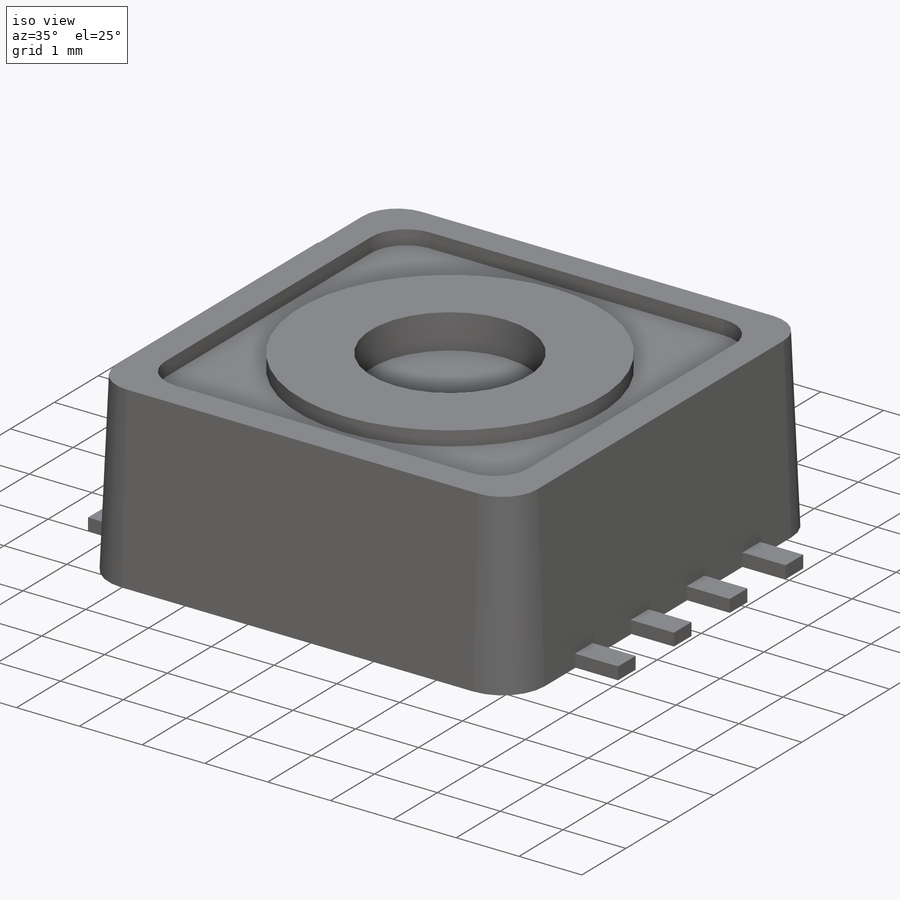
[diagram: iso view]
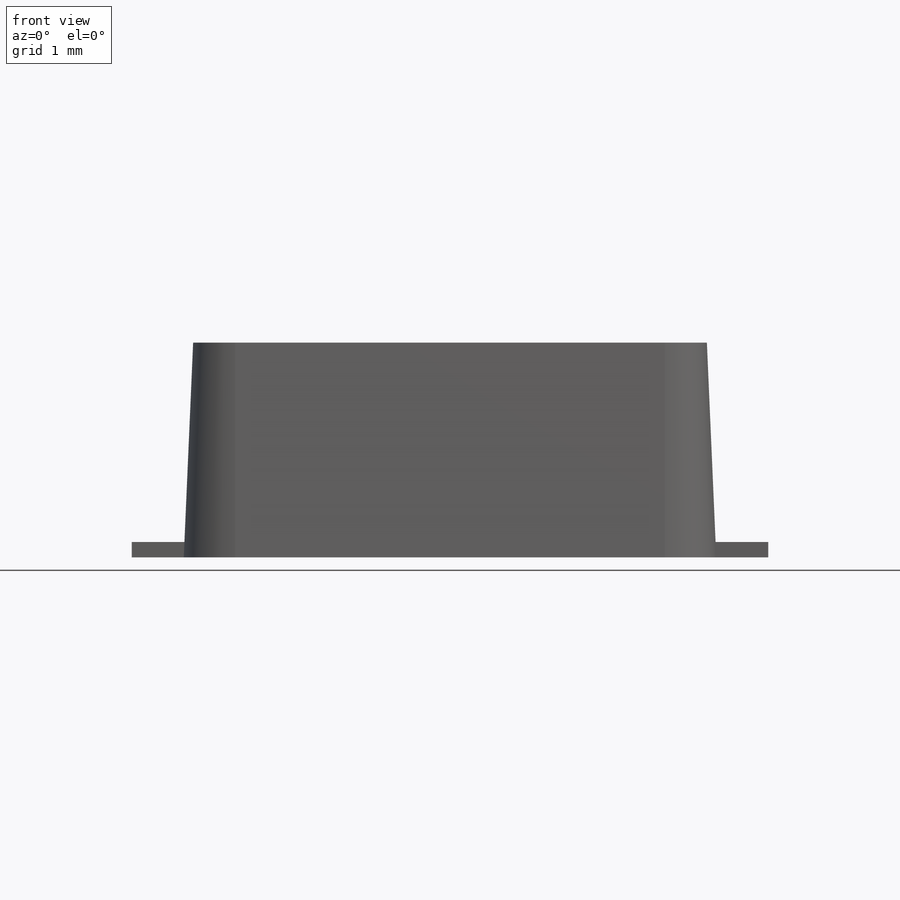
[diagram: front view]
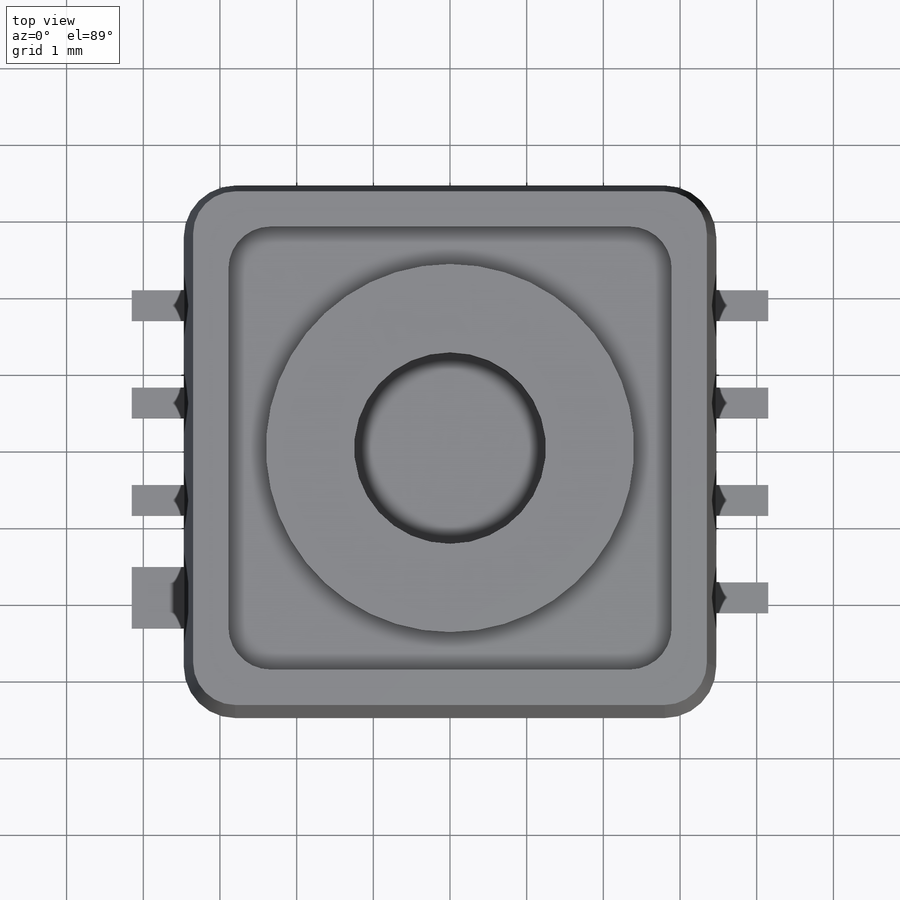
[diagram: top view]
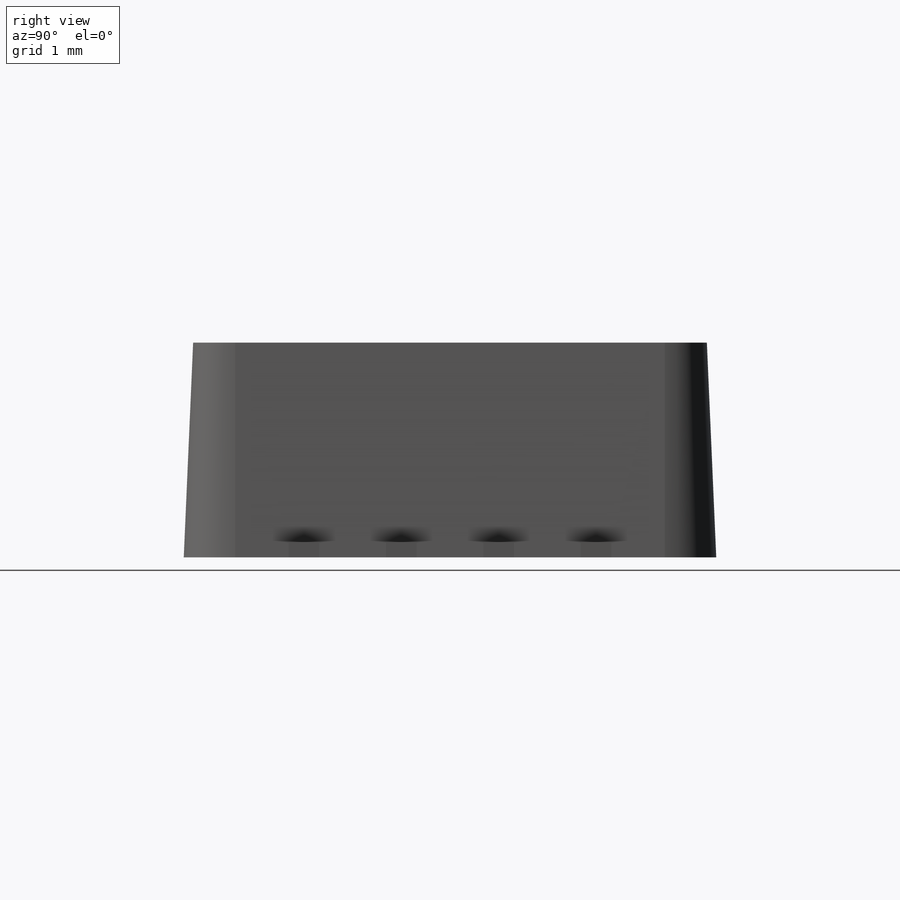
[diagram: right view]
SOLIDWORKS PART (.sldprt)
format: sldprt  version: not decoded by parser v0  size: 281,600 bytes
history: native  units: mm
features: sketch x5, extrude x3, cut_extrude x2, material x1, pattern_linear x1, mirror x1, fillet x1 (+11 scaffold rows collapsed)
feature tree (25):
  scaffold x11  (default folders/planes/origin — collapsed)
  material  "Material <not specified>"
  sketch  "Sketch1"  dims[D1=6.7mm]
  extrude  "Boss-Extrude1"  Depth=2.8mm
  sketch  "Sketch2"  dims[c1.D1=0.635mm c1.D2=0.2mm c1.D3=0.4mm c2.D1=0.635mm]
  extrude  "Boss-Extrude2"  Depth=0.8mm
  pattern_linear  "LPattern1"  Count1=3 Count2=2 Spacing1=1.27mm Spacing2=1.27mm
  mirror  "Mirror1"
  sketch  "Sketch3"  dims[D1=0.8mm]
  extrude  "Boss-Extrude3"  Depth=0.8mm
  fillet  "Fillet1"  Radius=0.55mm
  sketch  "Sketch4"  dims[D1=2.5mm]
  cut_extrude  "Cut-Extrude1"  Depth=0.55mm
  sketch  "Sketch5"  dims[D1=4.8mm D3=0.55mm D2=5.78mm]
  cut_extrude  "Cut-Extrude2"  Depth=0.23mm
decode coverage: 12 of 13 modeling features carry decoded parameters
note: suppression state not decoded; provenance and decode notes live in map.json
